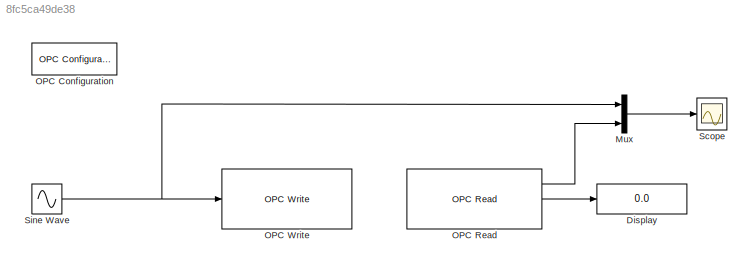
MODEL slx_8fc5ca49de38
KIND model
CONFIG AbsTol = auto
CONFIG EnableMultiTasking = off
CONFIG FixedStep = auto
CONFIG MaxStep = auto
CONFIG MinStep = auto
CONFIG RelTol = 1e-3
CONFIG SampleTimeConstraint = Unconstrained
CONFIG Solver = VariableStepAuto
CONFIG SolverName = VariableStepAuto
CONFIG StartTime = 0.0
CONFIG StopTime = 25
BLOCK [Display] Display
  Decimation = 1
  Ports = [1]
BLOCK [Mux] Mux
  DisplayOption = bar
  Inputs = 3
  Ports = [3, 1]
BLOCK [Reference] OPC Configuration  REF=opclib/OPC Configuration
  Ports = []
  SourceBlock = opclib/OPC Configuration
  SourceProductBaseCode = OT
  SourceType = OPC Configuration
BLOCK [Reference] OPC Read  REF=opclib/OPC Read
  Ports = [0, 3]
  SourceBlock = opclib/OPC Read
  SourceProductBaseCode = OT
  SourceType = OPC Read
BLOCK [Reference] OPC Write  REF=opclib/OPC Write
  Ports = [1]
  SourceBlock = opclib/OPC Write
  SourceProductBaseCode = OT
  SourceType = OPC Write
BLOCK [Scope] Scope
  Floating = off
  NumInputPorts = 1
  Ports = [1]
  ScopeSpecificationString = Simulink.scopes.TimeScopeBlockCfg('CurrentConfiguration', extmgr.ConfigurationSet(extmgr.Configuration('Core','General UI',true),extmgr.Configuration('Core','Source UI',true),extmgr.Configuration('Sources','WiredSimulink',true),extmgr.Configuration('Visuals','Time Domain',true,'SerializedDisplays',{struct('MinYLimReal','-1.24902','MaxYLimReal','1.24826','YLabelReal','','MinYLimMag','0.00000','MaxY...<+1408ch>
BLOCK [Sin] Sine Wave
  Frequency = .25
  Ports = [0, 1]
  SampleTime = 0
LINE Mux:1 -> Scope:1
LINE OPC Read:1 -> Mux:3
LINE OPC Read:2 -> Display:1
NET Sine Wave:1 -> Mux:1, OPC Write:1
note: NET lines group one-source signal fan-out (src -> all destinations, sorted); 1:1 wires keep LINE
